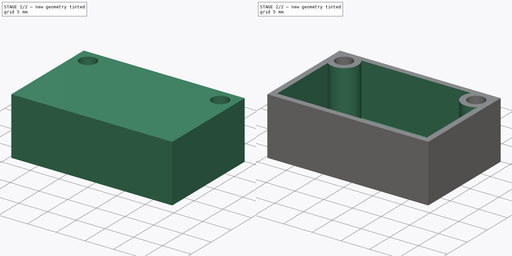
[diagram: build sequence overview — one tinted view per stage of 2, left to right]
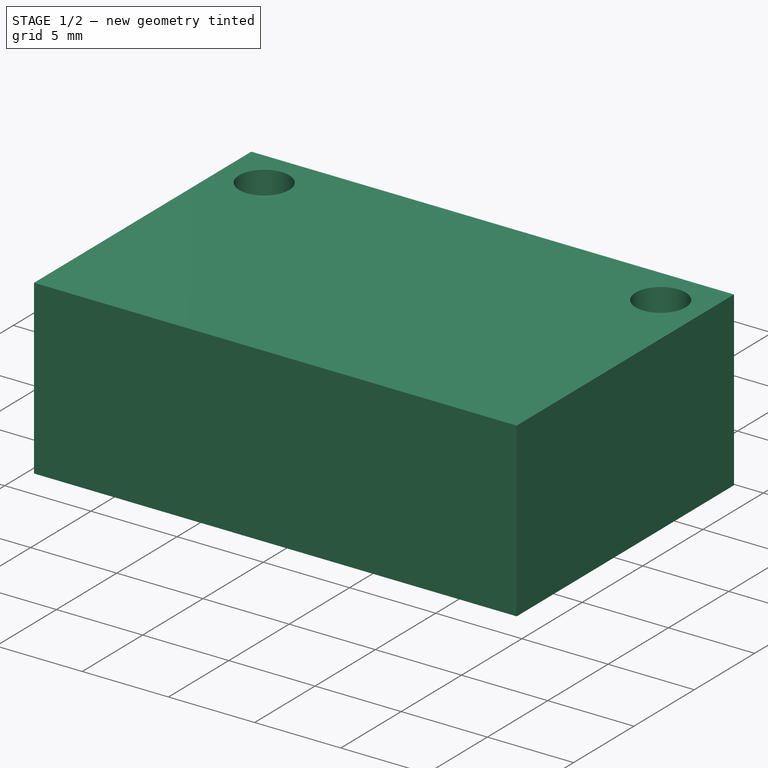
[diagram: stage 1 of 2 — iso view after this stage's code; geometry added in this stage tinted green]
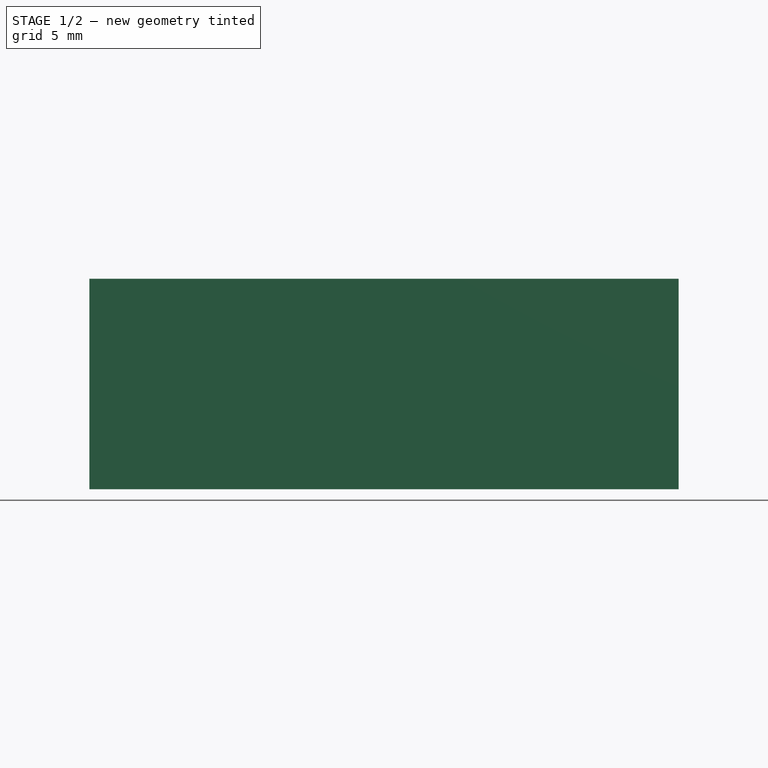
[diagram: stage 1 of 2 — front view after this stage's code; geometry added in this stage tinted green]
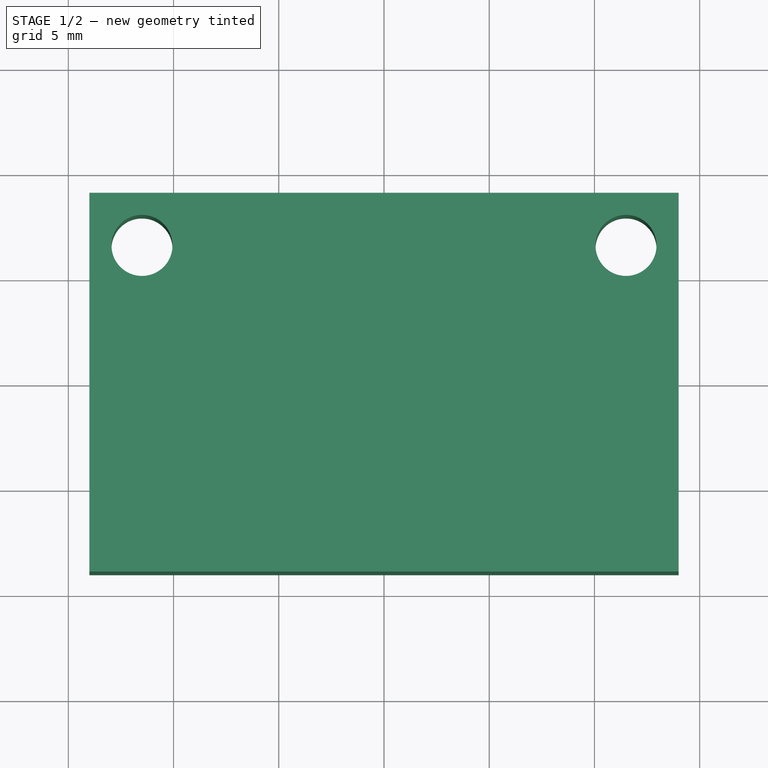
[diagram: stage 1 of 2 — top view after this stage's code; geometry added in this stage tinted green]
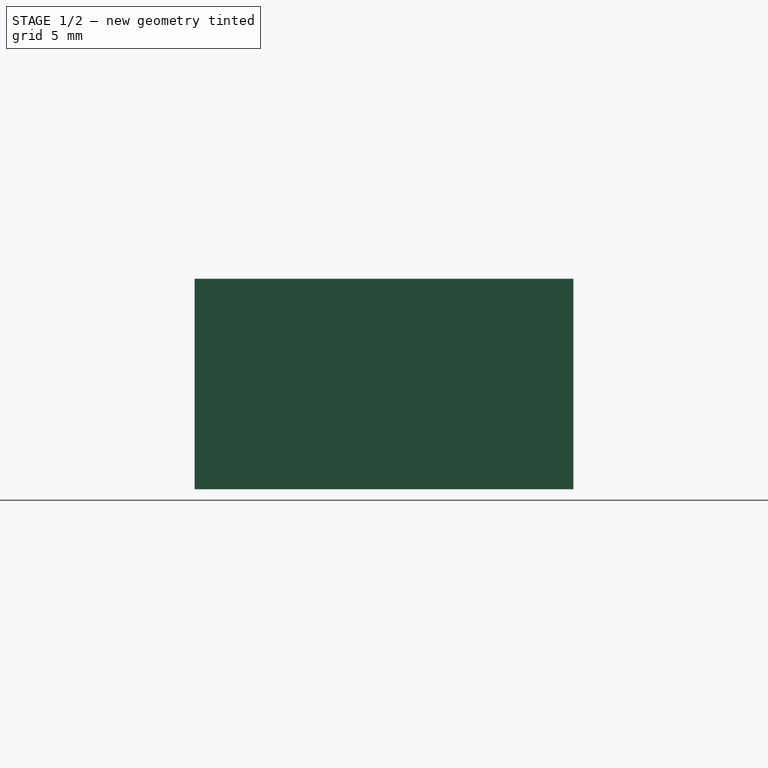
[diagram: stage 1 of 2 — right view after this stage's code; geometry added in this stage tinted green]
FCSTD DOCUMENT  (FreeCAD 0.20R29603 (Git))
Label: Case-ADS1115-module
License: All rights reserved
LicenseURL: http://en.wikipedia.org/wiki/All_rights_reserved
objects: Sketcher::SketchObject×1, PartDesign::Pad×1, PartDesign::Thickness×1, PartDesign::Body×1
note: 6 computed .brp shape members not serialized (recipe doc carries the construction recipe); baked Part::Feature solids carry a one-line shape summary decoded from their .brp

FEATURE [Sketcher::SketchObject] Sketch
  FullyConstrained = true
  MapMode = 5
  Support = -> [XY_Plane]
  sketch-geometry (8):
    g0: LineSegment StartX=-14 StartY=9 StartZ=0 EndX=14 EndY=9 EndZ=0
    g1: LineSegment StartX=14 StartY=9 StartZ=0 EndX=14 EndY=-9 EndZ=0
    g2: LineSegment StartX=14 StartY=-9 StartZ=0 EndX=-14 EndY=-9 EndZ=0
    g3: LineSegment StartX=-14 StartY=-9 StartZ=0 EndX=-14 EndY=9 EndZ=0
    g4: Circle CenterX=-11.5 CenterY=6.5 CenterZ=0 NormalX=0 NormalY=0 NormalZ=1 AngleXU=0 Radius=1.45
    g5: Circle CenterX=11.5 CenterY=6.5 CenterZ=0 NormalX=0 NormalY=0 NormalZ=1 AngleXU=0 Radius=1.45
    g6: LineSegment StartX=-14 StartY=6.5 StartZ=0 EndX=-12.95 EndY=6.5 EndZ=0
    g7: LineSegment StartX=-11.5 StartY=7.95 StartZ=0 EndX=-11.5 EndY=9 EndZ=0
  constraints (23):
    c: Coincident(g0,g1)
    c: Coincident(g1,g2)
    c: Coincident(g2,g3)
    c: Coincident(g3,g0)
    c: Horizontal(g2)
    c: Vertical(g3)
    c: Symmetric(g0,g0,g-2)
    c: Symmetric(g0,g1,g-1)
    c: DistanceX(g0,g0) = 28
    c: DistanceY(g1,g1) = 18
    c: Equal(g4,g5)
    c: Diameter(g4) = 2.9
    c: Symmetric(g4,g5,g-2)
    c: DistanceX(g4,g5) = 23
    c: PointOnObject(g6,g3)
    c: PointOnObject(g6,g4)
    c: Horizontal(g6)
    c: Perpendicular(g4,g6)
    c: PointOnObject(g7,g4)
    c: PointOnObject(g7,g0)
    c: Vertical(g7)
    c: Perpendicular(g4,g7)
    c: Equal(g7,g6)
FEATURE [PartDesign::Pad] Pad
  Direction = (0,0,1)
  Length = 10
  Length2 = 10
  Profile = -> Sketch
  ReferenceAxis = -> Sketch [N_Axis]
  Type = 0
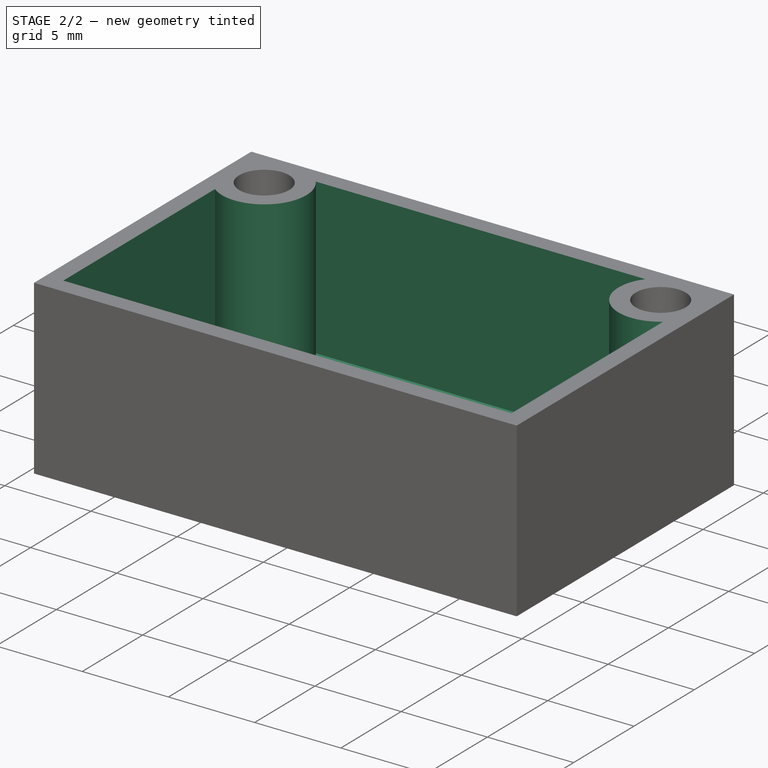
[diagram: stage 2 of 2 — iso view after this stage's code; geometry added in this stage tinted green]
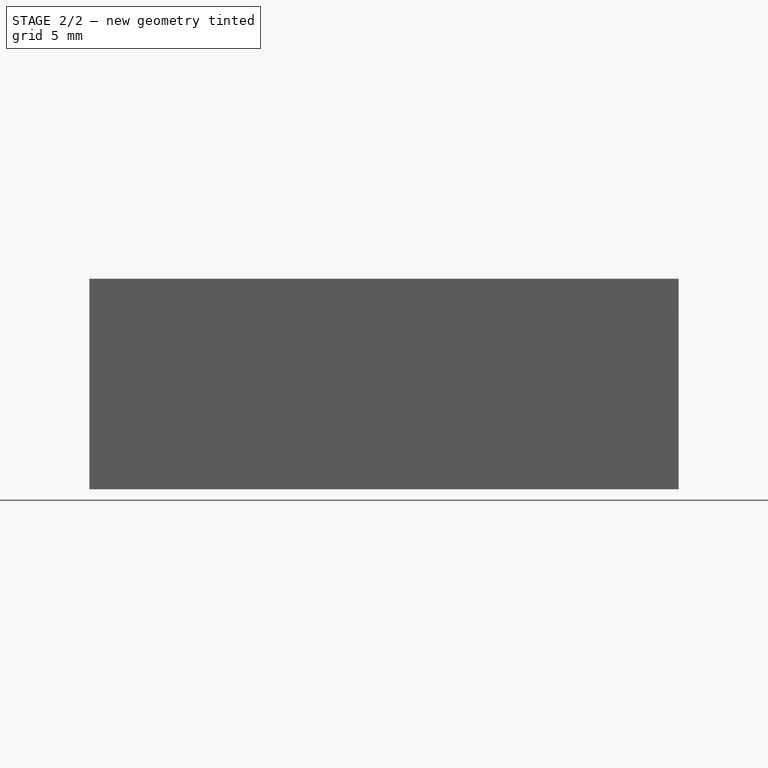
[diagram: stage 2 of 2 — front view after this stage's code; geometry added in this stage tinted green]
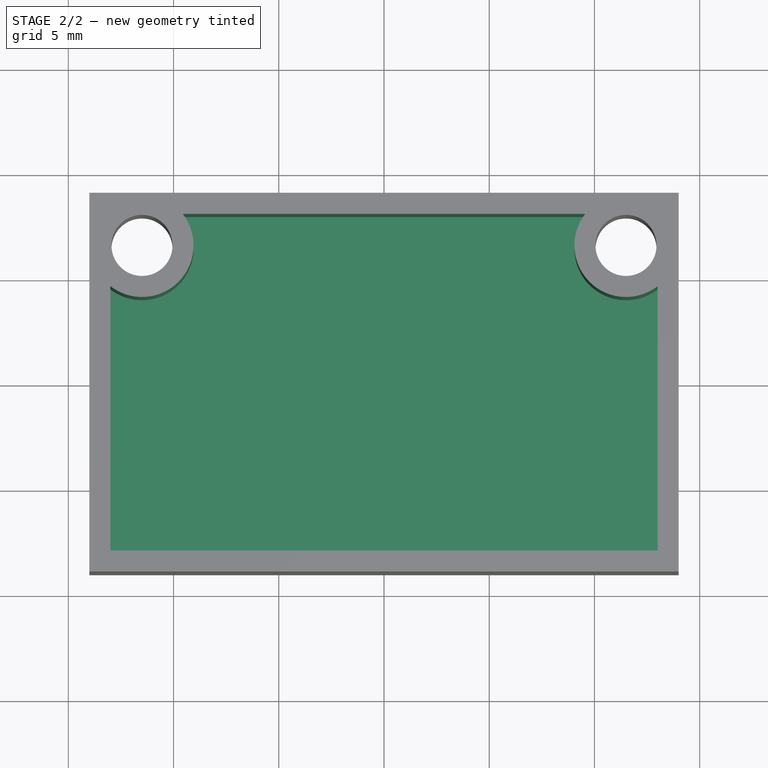
[diagram: stage 2 of 2 — top view after this stage's code; geometry added in this stage tinted green]
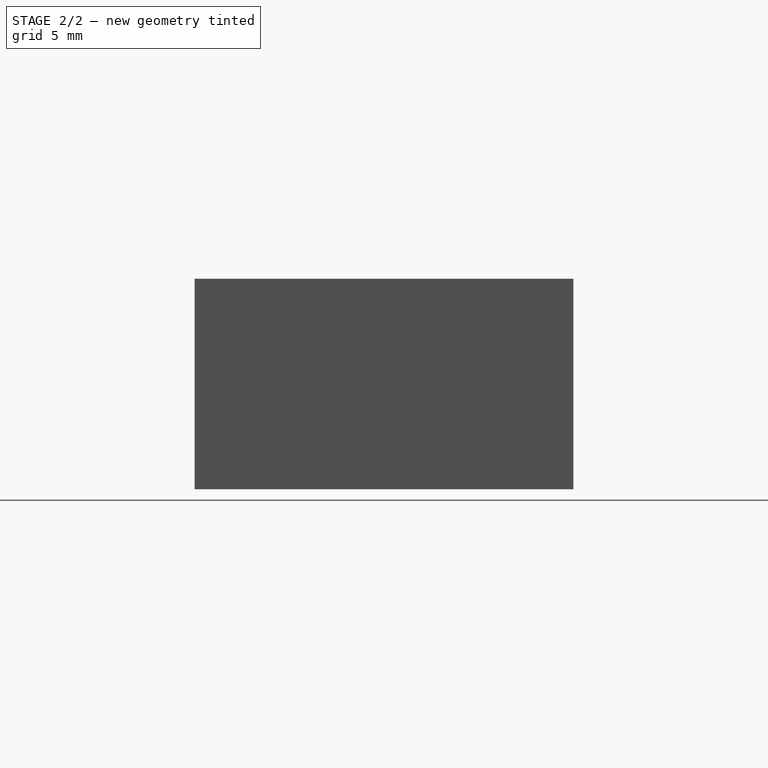
[diagram: stage 2 of 2 — right view after this stage's code; geometry added in this stage tinted green]
FEATURE [PartDesign::Thickness] Thickness
  Base = -> Pad [Face8]
  BaseFeature = -> Pad
  Intersection = true
  Join = 1
  Mode = 1
  Reversed = true
  SupportTransform = false
  Value = 1
FEATURE [PartDesign::Body] Body
  Group = -> [Sketch,Pad,Thickness]
  Origin = -> Origin
  Tip = -> Thickness
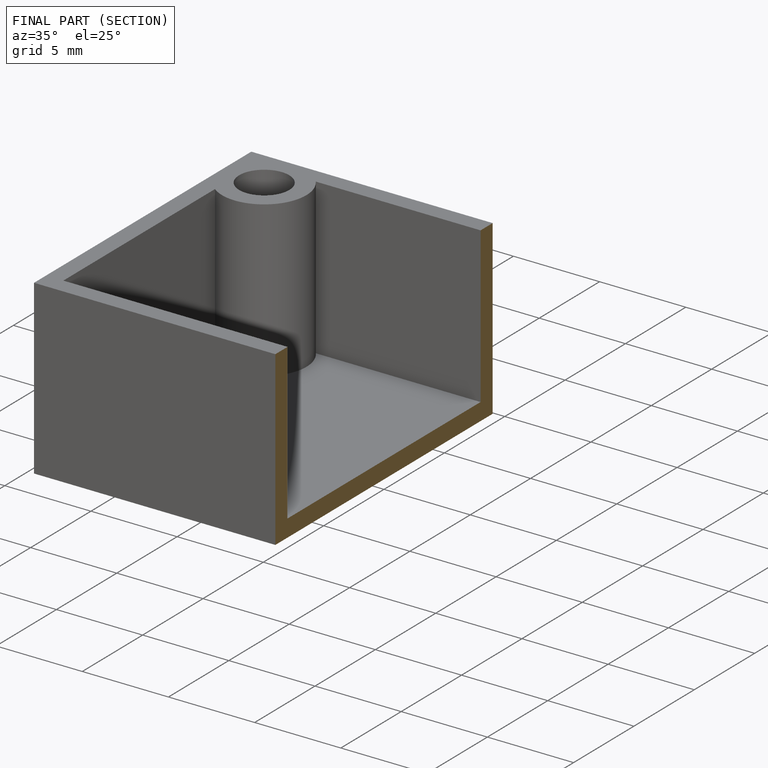
[diagram: finished part — half-section view (interior)]
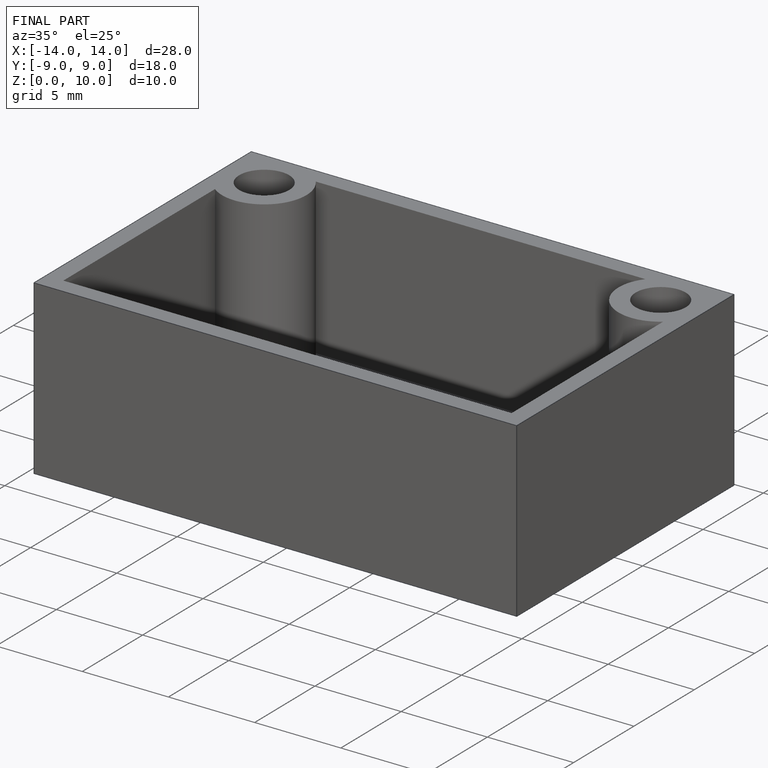
[diagram: finished part — iso view with bounding-box wireframe]
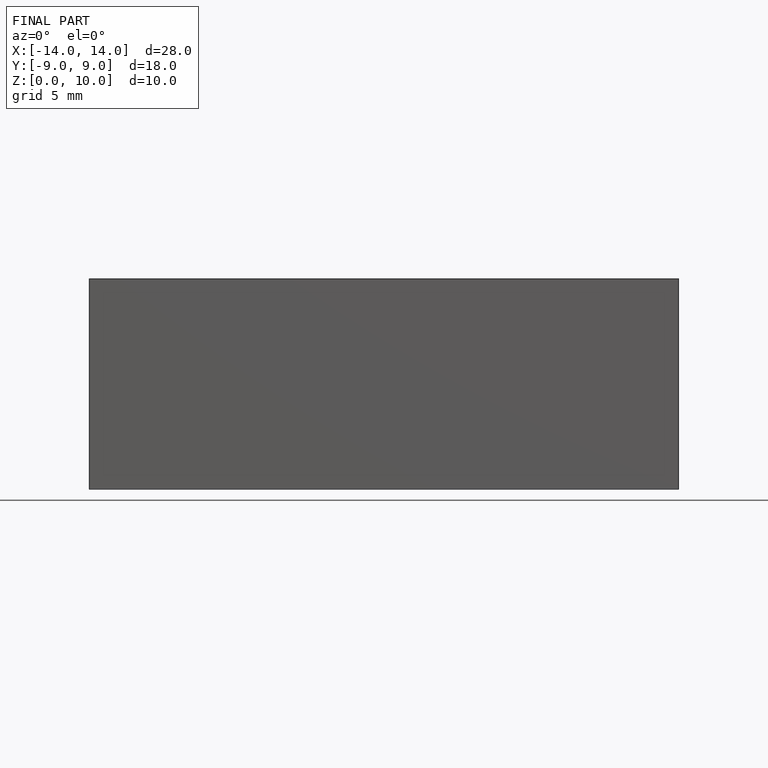
[diagram: finished part — front view with bounding-box wireframe]
